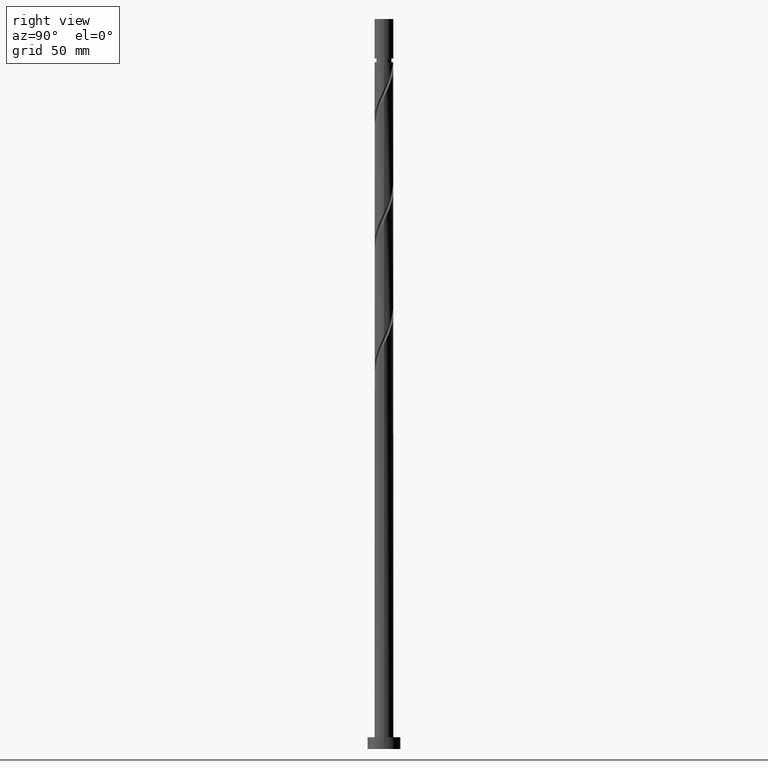
[diagram: clean part render]
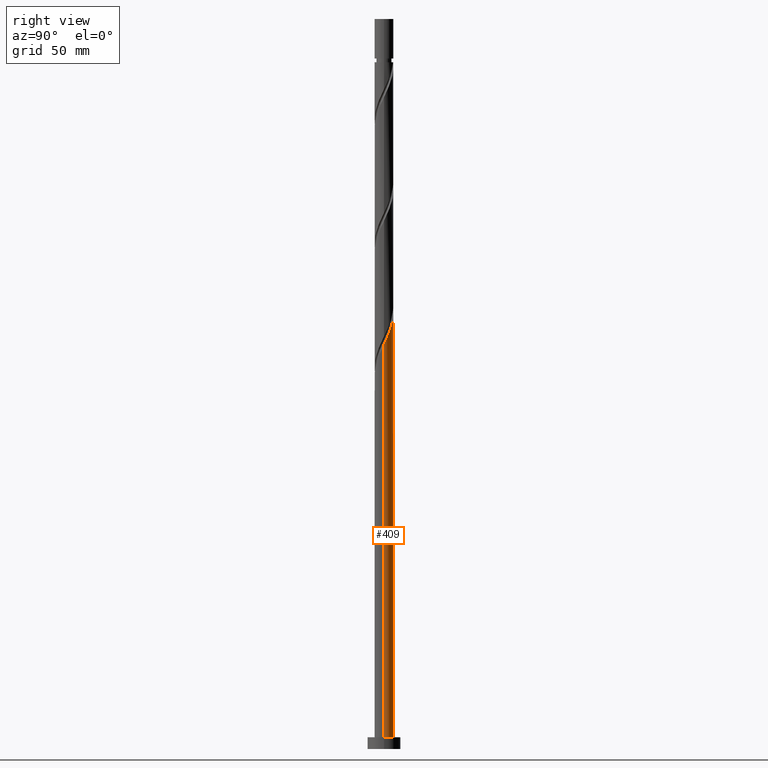
[diagram: same view with one face highlighted and labeled with its STEP entity id]
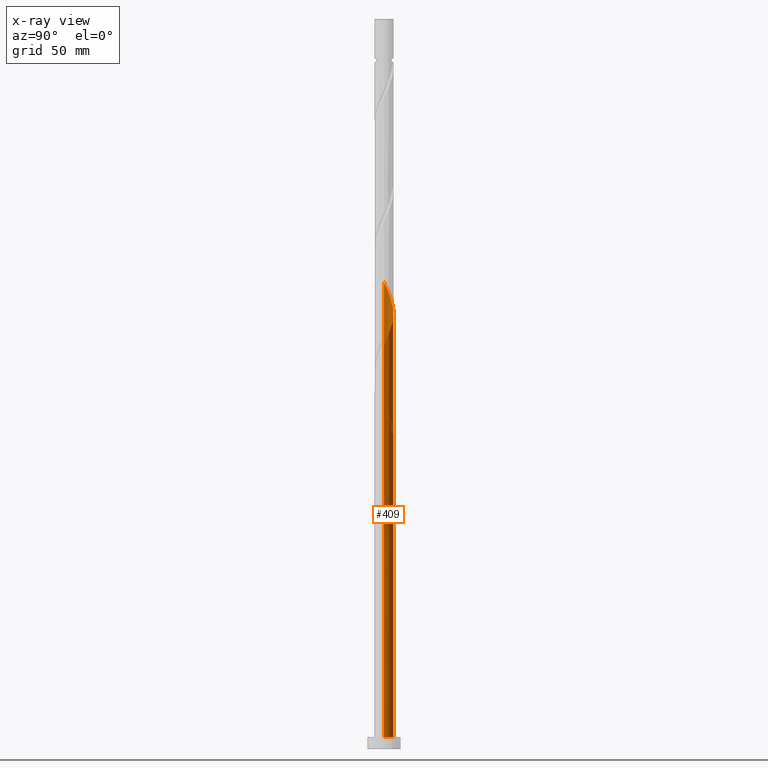
[diagram: x-ray of the same camera — body ghosted, the highlighted face saturated]
A machine part, right view. The second image highlights one B-rep face of the part: STEP entity #409.
The next image is the same camera in x-ray: the body ghosted, the highlighted face saturated — about 0% of this face is hidden behind the body in this view.
In plain terms, the highlighted cylindrical surface (edge-blend (fillet) strip) has radius 4 mm, axis along (-0, -0, -1).
Its self-contained STEP definition (entity closure, byte-faithful):
#14 = CARTESIAN_POINT ( 'NONE',  ( -1.237667874093734799, 3.830313472238021433, 187.5981802537390024 ) ) ;
#23 = CIRCLE ( 'NONE', #181, 4.000000000000000000 ) ;
#33 = CARTESIAN_POINT ( 'NONE',  ( -3.766332957902740475, 1.420513679056762291, 142.5981802537389171 ) ) ;
#39 = CARTESIAN_POINT ( 'NONE',  ( 0.000000000000000000, 0.000000000000000000, 134.1606802537390024 ) ) ;
#50 = CARTESIAN_POINT ( 'NONE',  ( -2.417986421170497557, 3.186430866508032977, 137.9106802537390308 ) ) ;
#52 =( BOUNDED_CURVE ( )  B_SPLINE_CURVE ( 2, ( #1177, #135, #1323, #1619, #1904, #1483, #575, #1786, #1197, #882, #1047, #291, #1761, #282, #1474, #467, #732, #14, #1648, #1331, #322, #601, #1779, #1186, #1771, #1213, #899, #1039, #1629, #1204, #162 ),
 .UNSPECIFIED., .F., .T. ) 
 B_SPLINE_CURVE_WITH_KNOTS ( ( 3, 2, 2, 2, 2, 2, 2, 2, 2, 2, 2, 2, 2, 2, 2, 3 ),
 ( 0.1795303401299220003, 0.1875000000000000000, 0.1964285714285713969, 0.2053571428571429047, 0.2142857142857143016, 0.2232142857142856984, 0.2321428571428570953, 0.2410714285714286031, 0.2500000000000000000, 0.2589285714285713969, 0.2678571428571429047, 0.2767857142857143016, 0.2857142857142856984, 0.2946428571428570953, 0.3035714285714286031, 0.3045303401299218615 ),
 .UNSPECIFIED. ) 
 CURVE ( )  GEOMETRIC_REPRESENTATION_ITEM ( )  RATIONAL_B_SPLINE_CURVE ( ( 0.9079949616362096299, 0.9039886423360726786, 0.9090909090909393697, 0.9033747362666143532, 0.9090909090909393697, 0.9033747362666143532, 0.9090909090909393697, 0.9033747362666143532, 0.9090909090909393697, 0.9033747362666143532, 0.9090909090909393697, 0.9033747362666143532, 0.9090909090909393697, 0.9033747362666143532, 0.9090909090909393697, 0.9033747362666143532, 0.9090909090909393697, 0.9033747362666143532, 0.9090909090909393697, 0.9033747362666143532, 0.9090909090909393697, 0.9033747362666143532, 0.9090909090909393697, 0.9033747362666143532, 0.9090909090909393697, 0.9033747362666143532, 0.9090909090909393697, 0.9033747362666143532, 0.9090909090909393697, 0.9084770030214812664, 0.9079949616362096299 ) ) 
 REPRESENTATION_ITEM ( '' )  );
#74 = CARTESIAN_POINT ( 'NONE',  ( -0.9836620935111607400, 3.877165057846935436, 137.9106802537389171 ) ) ;
#90 = CARTESIAN_POINT ( 'NONE',  ( 0.7959899496852993472, 3.919999999999999041, 134.1606802537389740 ) ) ;
#91 = VERTEX_POINT ( 'NONE', #965 ) ;
#120 = CARTESIAN_POINT ( 'NONE',  ( -4.000000000000005329, 9.933102278575590160E-15, 198.1111631758328429 ) ) ;
#135 = CARTESIAN_POINT ( 'NONE',  ( 4.000000000000006217, 0.4020151261036821189, 172.6994342547965289 ) ) ;
#150 = EDGE_CURVE ( 'NONE', #694, #1825, #1720, .T. ) ;
#157 = ORIENTED_EDGE ( 'NONE', *, *, #621, .T. ) ;
#162 = CARTESIAN_POINT ( 'NONE',  ( -4.000000000000005329, 9.933102278575590160E-15, 198.1111631758328429 ) ) ;
#181 = AXIS2_PLACEMENT_3D ( 'NONE', #624, #1809, #1370 ) ;
#192 = ORIENTED_EDGE ( 'NONE', *, *, #984, .F. ) ;
#193 = VERTEX_POINT ( 'NONE', #631 ) ;
#195 = CARTESIAN_POINT ( 'NONE',  ( -2.058961887652579037, 3.458872505219861004, 136.9731802537389740 ) ) ;
#273 = FACE_OUTER_BOUND ( 'NONE', #1052, .T. ) ;
#282 = CARTESIAN_POINT ( 'NONE',  ( 0.5468105079655646295, 3.987997157791141500, 183.8481802537390308 ) ) ;
#291 = CARTESIAN_POINT ( 'NONE',  ( 1.420513679056762957, 3.766332957902740475, 181.9731802537389740 ) ) ;
#322 = CARTESIAN_POINT ( 'NONE',  ( -2.417986421170497557, 3.186430866508032977, 190.4106802537389740 ) ) ;
#323 = DIRECTION ( 'NONE',  ( -1.000000000000000000, 0.000000000000000000, 0.000000000000000000 ) ) ;
#330 = CARTESIAN_POINT ( 'NONE',  ( -1.648314880873156918, 3.644592988728940774, 136.0356802537390308 ) ) ;
#342 = CARTESIAN_POINT ( 'NONE',  ( -4.000000000000005329, 9.933102278575590160E-15, 145.6111631758329281 ) ) ;
#355 = VERTEX_POINT ( 'NONE', #545 ) ;
#356 = CARTESIAN_POINT ( 'NONE',  ( -3.998841842776565958, 0.09624924134435045020, 145.4106802537390024 ) ) ;
#375 = CARTESIAN_POINT ( 'NONE',  ( -1.821750020894125521, 3.561071027285505952, 139.7856802537389740 ) ) ;
#390 = CARTESIAN_POINT ( 'NONE',  ( -2.568487795263846518, 3.066410025678343754, 141.6606802537389740 ) ) ;
#392 = VERTEX_POINT ( 'NONE', #120 ) ;
#405 = DIRECTION ( 'NONE',  ( -0.000000000000000000, -0.000000000000000000, -1.000000000000000000 ) ) ;
#409 = ADVANCED_FACE ( 'NONE', ( #273 ), #1467, .T. ) ;
#467 = CARTESIAN_POINT ( 'NONE',  ( -0.3543120252768621192, 4.009686527761989971, 185.7231802537390024 ) ) ;
#479 = CARTESIAN_POINT ( 'NONE',  ( -0.7959899496852977929, 3.920000000000005258, 134.1606802537389740 ) ) ;
#487 = CARTESIAN_POINT ( 'NONE',  ( -3.355809096668281200, 2.222986362731496079, 140.7231802537389740 ) ) ;
#514 = CARTESIAN_POINT ( 'NONE',  ( -3.987997157791141500, 0.5468105079655638523, 144.4731802537389740 ) ) ;
#531 = CARTESIAN_POINT ( 'NONE',  ( -1.420513679056759626, 3.766332957902735590, 138.8481802537390024 ) ) ;
#545 = CARTESIAN_POINT ( 'NONE',  ( 0.7959899496852993472, 3.919999999999999041, 134.1606802537389740 ) ) ;
#552 = LINE ( 'NONE', #1466, #1158 ) ;
#560 = CIRCLE ( 'NONE', #1285, 4.000000000000000000 ) ;
#575 = CARTESIAN_POINT ( 'NONE',  ( 3.186430866508034754, 2.417986421170496669, 177.2856802537390024 ) ) ;
#601 = CARTESIAN_POINT ( 'NONE',  ( -2.777010954688416522, 2.913989227796204950, 191.3481802537389171 ) ) ;
#621 = EDGE_CURVE ( 'NONE', #193, #1515, #23, .T. ) ;
#624 = CARTESIAN_POINT ( 'NONE',  ( 0.000000000000000000, 0.000000000000000000, 5.000000000000000000 ) ) ;
#631 = CARTESIAN_POINT ( 'NONE',  ( 4.000000000000000000, 4.898587196589412829E-16, 5.000000000000000000 ) ) ;
#644 = CARTESIAN_POINT ( 'NONE',  ( -3.066410025678347306, 2.568487795263850959, 139.7856802537390308 ) ) ;
#692 = CARTESIAN_POINT ( 'NONE',  ( -3.919999999999999041, 0.7959899496852982370, 147.2856802537389456 ) ) ;
#694 = VERTEX_POINT ( 'NONE', #479 ) ;
#709 = EDGE_CURVE ( 'NONE', #694, #355, #560, .T. ) ;
#732 = CARTESIAN_POINT ( 'NONE',  ( -0.7959899496852976819, 3.920000000000005258, 186.6606802537390024 ) ) ;
#740 = LINE ( 'NONE', #1340, #1100 ) ;
#752 = ORIENTED_EDGE ( 'NONE', *, *, #709, .T. ) ;
#762 = ORIENTED_EDGE ( 'NONE', *, *, #1144, .F. ) ;
#769 = DIRECTION ( 'NONE',  ( -1.000000000000000000, 0.000000000000000000, 0.000000000000000000 ) ) ;
#787 = ORIENTED_EDGE ( 'NONE', *, *, #1167, .F. ) ;
#814 = CARTESIAN_POINT ( 'NONE',  ( -2.777010954688416522, 2.913989227796204950, 138.8481802537389740 ) ) ;
#882 = CARTESIAN_POINT ( 'NONE',  ( 2.222986362731496524, 3.355809096668280755, 180.0981802537389171 ) ) ;
#899 = CARTESIAN_POINT ( 'NONE',  ( -3.877165057846941654, 0.9836620935111629604, 196.0356802537389740 ) ) ;
#928 = CARTESIAN_POINT ( 'NONE',  ( -3.561071027285510837, 1.821750020894129074, 141.6606802537390024 ) ) ;
#961 = CARTESIAN_POINT ( 'NONE',  ( -4.000000000000000000, 0.000000000000000000, 5.000000000000000000 ) ) ;
#965 = CARTESIAN_POINT ( 'NONE',  ( 4.000000000000005329, 6.119567143825683200E-16, 171.8611631758329281 ) ) ;
#974 = CARTESIAN_POINT ( 'NONE',  ( 0.3543120252768630074, 4.009686527761982866, 135.0981802537389456 ) ) ;
#975 = AXIS2_PLACEMENT_3D ( 'NONE', #1341, #1638, #323 ) ;
#984 = EDGE_CURVE ( 'NONE', #1825, #1515, #552, .T. ) ;
#985 = CARTESIAN_POINT ( 'NONE',  ( -3.999999999999998224, -8.977852773197980607E-15, 148.9601973316450767 ) ) ;
#1000 = CARTESIAN_POINT ( 'NONE',  ( -4.000000000000005329, 9.933102278575590160E-15, 145.6111631758328997 ) ) ;
#1039 = CARTESIAN_POINT ( 'NONE',  ( -3.987997157791141500, 0.5468105079655638523, 196.9731802537390024 ) ) ;
#1047 = CARTESIAN_POINT ( 'NONE',  ( 1.821750020894129518, 3.561071027285510837, 181.0356802537390308 ) ) ;
#1052 = EDGE_LOOP ( 'NONE', ( #762, #1142, #157, #192, #1352, #752, #1064, #787 ) ) ;
#1064 = ORIENTED_EDGE ( 'NONE', *, *, #1759, .F. ) ;
#1081 = DIRECTION ( 'NONE',  ( 0.000000000000000000, -0.000000000000000000, -1.000000000000000000 ) ) ;
#1090 = CARTESIAN_POINT ( 'NONE',  ( -0.7959899496852977929, 3.920000000000005258, 134.1606802537389740 ) ) ;
#1100 = VECTOR ( 'NONE', #1924, 1000.000000000000000 ) ;
#1104 = CARTESIAN_POINT ( 'NONE',  ( -1.237667874093734799, 3.830313472238021433, 135.0981802537389456 ) ) ;
#1142 = ORIENTED_EDGE ( 'NONE', *, *, #1320, .T. ) ;
#1144 = EDGE_CURVE ( 'NONE', #91, #392, #52, .T. ) ;
#1158 = VECTOR ( 'NONE', #405, 1000.000000000000000 ) ;
#1167 = EDGE_CURVE ( 'NONE', #392, #1889, #740, .T. ) ;
#1177 = CARTESIAN_POINT ( 'NONE',  ( 4.000000000000005329, 6.119567143825683200E-16, 171.8611631758329281 ) ) ;
#1186 = CARTESIAN_POINT ( 'NONE',  ( -3.355809096668281200, 2.222986362731496079, 193.2231802537389456 ) ) ;
#1197 = CARTESIAN_POINT ( 'NONE',  ( 2.568487795263851847, 3.066410025678347306, 179.1606802537390024 ) ) ;
#1204 = CARTESIAN_POINT ( 'NONE',  ( -4.000000000000004441, 0.04813158866557185056, 198.0108004876078098 ) ) ;
#1213 = CARTESIAN_POINT ( 'NONE',  ( -3.766332957902740475, 1.420513679056762291, 195.0981802537389456 ) ) ;
#1285 = AXIS2_PLACEMENT_3D ( 'NONE', #39, #1081, #769 ) ;
#1320 = EDGE_CURVE ( 'NONE', #91, #193, #1394, .T. ) ;
#1323 = CARTESIAN_POINT ( 'NONE',  ( 3.920000000000005258, 0.7959899496852977929, 173.5356802537390024 ) ) ;
#1331 = CARTESIAN_POINT ( 'NONE',  ( -2.058961887652579037, 3.458872505219861004, 189.4731802537390024 ) ) ;
#1340 = CARTESIAN_POINT ( 'NONE',  ( -4.000000000000000000, 0.000000000000000000, 310.0000000000000000 ) ) ;
#1341 = CARTESIAN_POINT ( 'NONE',  ( 0.000000000000000000, 0.000000000000000000, 310.0000000000000000 ) ) ;
#1352 = ORIENTED_EDGE ( 'NONE', *, *, #150, .F. ) ;
#1370 = DIRECTION ( 'NONE',  ( 1.000000000000000000, 0.000000000000000000, 0.000000000000000000 ) ) ;
#1381 = CARTESIAN_POINT ( 'NONE',  ( 4.000000000000000000, 4.898587196589412829E-16, 310.0000000000000000 ) ) ;
#1394 = LINE ( 'NONE', #1381, #1717 ) ;
#1429 = CARTESIAN_POINT ( 'NONE',  ( -0.5468105079655622980, 3.987997157791136171, 136.9731802537389456 ) ) ;
#1436 = CARTESIAN_POINT ( 'NONE',  ( -4.000000000000000000, 0.4020151261036815082, 148.1219262526813907 ) ) ;
#1466 = CARTESIAN_POINT ( 'NONE',  ( -4.000000000000000000, 0.000000000000000000, 310.0000000000000000 ) ) ;
#1467 = CYLINDRICAL_SURFACE ( 'NONE', #975, 4.000000000000000000 ) ;
#1474 = CARTESIAN_POINT ( 'NONE',  ( 0.09624924134435140777, 3.998841842776565958, 184.7856802537390593 ) ) ;
#1483 = CARTESIAN_POINT ( 'NONE',  ( 3.458872505219861448, 2.058961887652578149, 176.3481802537390024 ) ) ;
#1515 = VERTEX_POINT ( 'NONE', #961 ) ;
#1556 = CARTESIAN_POINT ( 'NONE',  ( -3.877165057846941654, 0.9836620935111629604, 143.5356802537389740 ) ) ;
#1574 = CARTESIAN_POINT ( 'NONE',  ( -2.222986362731492527, 3.355809096668277203, 140.7231802537389456 ) ) ;
#1575 =( BOUNDED_CURVE ( )  B_SPLINE_CURVE ( 2, ( #985, #1436, #692, #1718, #1725, #1710, #1850, #1840, #390, #1574, #375, #531, #74, #1429, #1872, #974, #90 ),
 .UNSPECIFIED., .F., .T. ) 
 B_SPLINE_CURVE_WITH_KNOTS ( ( 3, 2, 2, 2, 2, 2, 2, 2, 3 ),
 ( 0.9295303401299219725, 0.9375000000000000000, 0.9464285714285713969, 0.9553571428571429047, 0.9642857142857143016, 0.9732142857142856984, 0.9821428571428570953, 0.9910714285714286031, 1.000000000000000000 ),
 .UNSPECIFIED. ) 
 CURVE ( )  GEOMETRIC_REPRESENTATION_ITEM ( )  RATIONAL_B_SPLINE_CURVE ( ( 0.9079949616362037457, 0.9039886423360666834, 0.9090909090909334855, 0.9033747362666083580, 0.9090909090909334855, 0.9033747362666083580, 0.9090909090909334855, 0.9033747362666083580, 0.9090909090909334855, 0.9033747362666083580, 0.9090909090909334855, 0.9033747362666083580, 0.9090909090909334855, 0.9033747362666083580, 0.9090909090909334855, 0.9033747362666083580, 0.9090909090909334855 ) ) 
 REPRESENTATION_ITEM ( '' )  );
#1619 = CARTESIAN_POINT ( 'NONE',  ( 3.830313472238021433, 1.237667874093733911, 174.4731802537388887 ) ) ;
#1629 = CARTESIAN_POINT ( 'NONE',  ( -3.998841842776565958, 0.09624924134435045020, 197.9106802537389740 ) ) ;
#1638 = DIRECTION ( 'NONE',  ( -0.000000000000000000, -0.000000000000000000, -1.000000000000000000 ) ) ;
#1648 = CARTESIAN_POINT ( 'NONE',  ( -1.648314880873156918, 3.644592988728940774, 188.5356802537389171 ) ) ;
#1678 = CARTESIAN_POINT ( 'NONE',  ( -4.000000000000004441, 0.04813158866557044890, 145.5108004876078382 ) ) ;
#1710 = CARTESIAN_POINT ( 'NONE',  ( -3.458872505219855675, 2.058961887652576817, 144.4731802537388887 ) ) ;
#1717 = VECTOR ( 'NONE', #1831, 1000.000000000000000 ) ;
#1718 = CARTESIAN_POINT ( 'NONE',  ( -3.830313472238014771, 1.237667874093733245, 146.3481802537390024 ) ) ;
#1720 =( BOUNDED_CURVE ( )  B_SPLINE_CURVE ( 2, ( #1090, #1104, #330, #195, #50, #814, #644, #487, #928, #33, #1556, #514, #356, #1678, #342 ),
 .UNSPECIFIED., .F., .T. ) 
 B_SPLINE_CURVE_WITH_KNOTS ( ( 3, 2, 2, 2, 2, 2, 2, 3 ),
 ( 0.000000000000000000, 0.008928571428571396851, 0.01785714285714290472, 0.02678571428571430157, 0.03571428571428569843, 0.04464285714285709528, 0.05357142857142860315, 0.05453034012992188928 ),
 .UNSPECIFIED. ) 
 CURVE ( )  GEOMETRIC_REPRESENTATION_ITEM ( )  RATIONAL_B_SPLINE_CURVE ( ( 0.9090909090909393697, 0.9033747362666143532, 0.9090909090909393697, 0.9033747362666143532, 0.9090909090909393697, 0.9033747362666143532, 0.9090909090909393697, 0.9033747362666143532, 0.9090909090909393697, 0.9033747362666143532, 0.9090909090909393697, 0.9033747362666143532, 0.9090909090909393697, 0.9084770030214812664, 0.9079949616362096299 ) ) 
 REPRESENTATION_ITEM ( '' )  );
#1725 = CARTESIAN_POINT ( 'NONE',  ( -3.644592988728935445, 1.648314880873155142, 145.4106802537389740 ) ) ;
#1759 = EDGE_CURVE ( 'NONE', #1889, #355, #1575, .T. ) ;
#1761 = CARTESIAN_POINT ( 'NONE',  ( 0.9836620935111639596, 3.877165057846941654, 182.9106802537390308 ) ) ;
#1771 = CARTESIAN_POINT ( 'NONE',  ( -3.561071027285510837, 1.821750020894129074, 194.1606802537390024 ) ) ;
#1779 = CARTESIAN_POINT ( 'NONE',  ( -3.066410025678347306, 2.568487795263850959, 192.2856802537390024 ) ) ;
#1786 = CARTESIAN_POINT ( 'NONE',  ( 2.913989227796204950, 2.777010954688415634, 178.2231802537389456 ) ) ;
#1809 = DIRECTION ( 'NONE',  ( 0.000000000000000000, 0.000000000000000000, 1.000000000000000000 ) ) ;
#1825 = VERTEX_POINT ( 'NONE', #1000 ) ;
#1831 = DIRECTION ( 'NONE',  ( -0.000000000000000000, -0.000000000000000000, -1.000000000000000000 ) ) ;
#1840 = CARTESIAN_POINT ( 'NONE',  ( -2.913989227796199621, 2.777010954688412081, 142.5981802537389456 ) ) ;
#1850 = CARTESIAN_POINT ( 'NONE',  ( -3.186430866508028092, 2.417986421170494449, 143.5356802537389456 ) ) ;
#1872 = CARTESIAN_POINT ( 'NONE',  ( -0.09624924134434953427, 3.998841842776559741, 136.0356802537389740 ) ) ;
#1889 = VERTEX_POINT ( 'NONE', #1900 ) ;
#1900 = CARTESIAN_POINT ( 'NONE',  ( -3.999999999999998224, -8.977852773197982184E-15, 148.9601973316450483 ) ) ;
#1904 = CARTESIAN_POINT ( 'NONE',  ( 3.644592988728941219, 1.648314880873156474, 175.4106802537389740 ) ) ;
#1924 = DIRECTION ( 'NONE',  ( -0.000000000000000000, -0.000000000000000000, -1.000000000000000000 ) ) ;